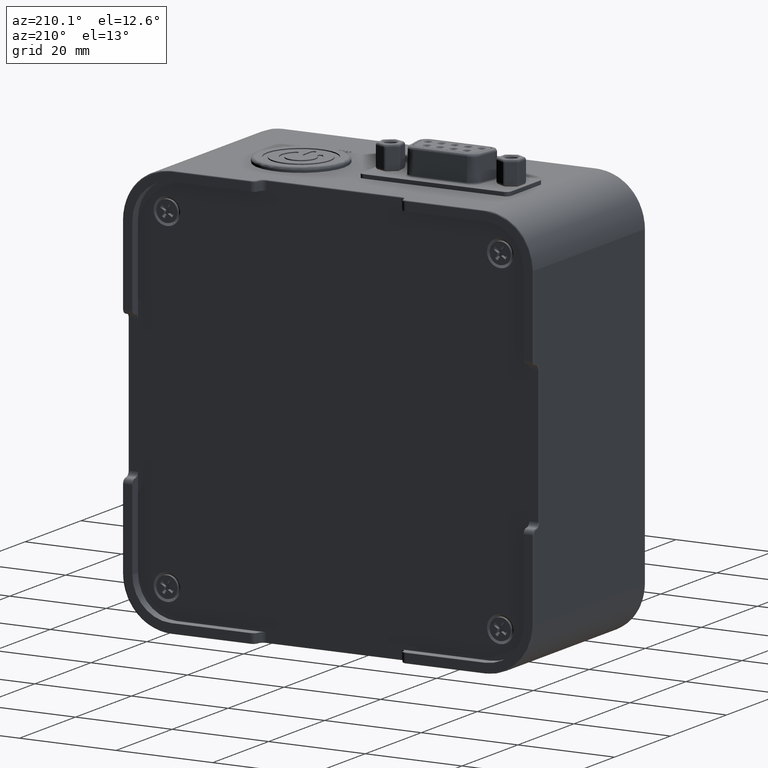
[diagram: clean part render]
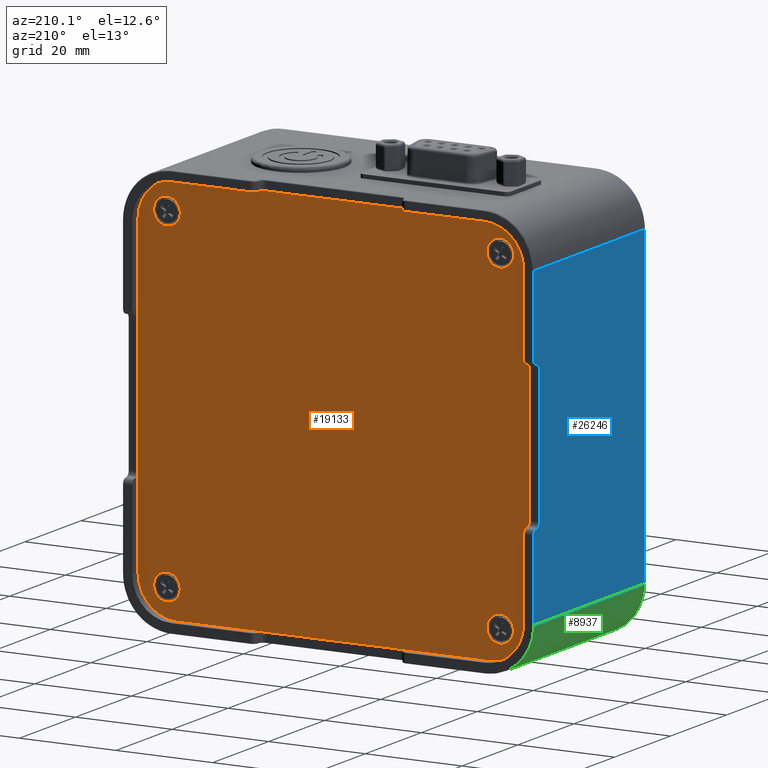
[diagram: same view with three faces highlighted in distinct colors, each labeled with its STEP entity id]
A machine part, auxiliary view with three faces highlighted in distinct colors.
Their STEP definitions:

[orange] entity #19133 — the highlighted planar face has unit normal (-0, 1, 0).
#205 = VECTOR ( 'NONE', #43776, 1000.000000000000000 ) ;
#1231 = EDGE_CURVE ( 'NONE', #12256, #12256, #27278, .T. ) ;
#1594 = EDGE_CURVE ( 'NONE', #36163, #35679, #8375, .T. ) ;
#2066 = AXIS2_PLACEMENT_3D ( 'NONE', #18904, #18453, #19349 ) ;
#2319 = AXIS2_PLACEMENT_3D ( 'NONE', #2552, #44098, #40506 ) ;
#2552 = CARTESIAN_POINT ( 'NONE',  ( 7.999999999999979572, 38.00000000001090683, 76.99999999999995737 ) ) ;
#2867 = VECTOR ( 'NONE', #23157, 1000.000000000000000 ) ;
#3170 = VECTOR ( 'NONE', #43686, 1000.000000000000000 ) ;
#3362 = ORIENTED_EDGE ( 'NONE', *, *, #26351, .F. ) ;
#3841 = VERTEX_POINT ( 'NONE', #17515 ) ;
#4310 = CIRCLE ( 'NONE', #10025, 7.999999999999992895 ) ;
#4497 = DIRECTION ( 'NONE',  ( 1.224646799147353454E-16, -1.000000000000000000, -1.224646799147353207E-16 ) ) ;
#4700 = DIRECTION ( 'NONE',  ( 0.000000000000000000, 0.000000000000000000, 1.000000000000000000 ) ) ;
#4759 = AXIS2_PLACEMENT_3D ( 'NONE', #13433, #34309, #17241 ) ;
#5197 = EDGE_CURVE ( 'NONE', #13369, #13369, #5982, .T. ) ;
#5242 = DIRECTION ( 'NONE',  ( 1.000000000000000000, 0.000000000000000000, 0.000000000000000000 ) ) ;
#5410 = DIRECTION ( 'NONE',  ( -1.224646799147353454E-16, 1.000000000000000000, 1.224646799147353207E-16 ) ) ;
#5940 = CARTESIAN_POINT ( 'NONE',  ( 2.000000000000015543, 38.00000000000001421, 1.999999999999960032 ) ) ;
#5982 = CIRCLE ( 'NONE', #16697, 2.749999999973155695 ) ;
#6351 = CIRCLE ( 'NONE', #2066, 8.000000000000000000 ) ;
#7082 = CARTESIAN_POINT ( 'NONE',  ( 8.000000000000014211, 38.00000000001091394, 10.74999999997312905 ) ) ;
#7897 = CARTESIAN_POINT ( 'NONE',  ( 9.999999999999998224, 37.99999999999999289, 82.99999999999997158 ) ) ;
#7926 = AXIS2_PLACEMENT_3D ( 'NONE', #11629, #18371, #4700 ) ;
#8047 = EDGE_LOOP ( 'NONE', ( #40025 ) ) ;
#8375 = LINE ( 'NONE', #16011, #18067 ) ;
#8588 = ORIENTED_EDGE ( 'NONE', *, *, #9317, .F. ) ;
#8988 = FACE_BOUND ( 'NONE', #8047, .T. ) ;
#9317 = EDGE_CURVE ( 'NONE', #25191, #35679, #24835, .T. ) ;
#9464 = ORIENTED_EDGE ( 'NONE', *, *, #32721, .T. ) ;
#9576 = VERTEX_POINT ( 'NONE', #11838 ) ;
#9966 = EDGE_LOOP ( 'NONE', ( #35720 ) ) ;
#9995 = VERTEX_POINT ( 'NONE', #13801 ) ;
#10025 = AXIS2_PLACEMENT_3D ( 'NONE', #34574, #4497, #31637 ) ;
#10280 = CARTESIAN_POINT ( 'NONE',  ( 83.00000000000001421, 38.00000000000000711, 2.000000000000001776 ) ) ;
#11158 = EDGE_CURVE ( 'NONE', #9995, #9995, #29125, .T. ) ;
#11629 = CARTESIAN_POINT ( 'NONE',  ( 76.99999999999998579, 37.99999999995407052, 77.00000000000001421 ) ) ;
#11838 = CARTESIAN_POINT ( 'NONE',  ( 74.99999999999998579, 38.00000000000000000, 83.00000000000000000 ) ) ;
#11917 = AXIS2_PLACEMENT_3D ( 'NONE', #31888, #28729, #32330 ) ;
#11963 = CARTESIAN_POINT ( 'NONE',  ( 74.99999999999998579, 38.00000000000001421, 9.999999999999980460 ) ) ;
#12181 = DIRECTION ( 'NONE',  ( 1.224646799147353454E-16, -1.000000000000000000, -1.224646799147353207E-16 ) ) ;
#12256 = VERTEX_POINT ( 'NONE', #25950 ) ;
#12415 = DIRECTION ( 'NONE',  ( -2.180132940149908669E-16, -0.000000000000000000, 1.000000000000000000 ) ) ;
#13009 = FACE_OUTER_BOUND ( 'NONE', #26266, .T. ) ;
#13369 = VERTEX_POINT ( 'NONE', #7082 ) ;
#13416 = DIRECTION ( 'NONE',  ( -0.000000000000000000, -1.000000000000000000, -0.000000000000000000 ) ) ;
#13433 = CARTESIAN_POINT ( 'NONE',  ( 10.00000000000000178, 37.99999999999999289, 74.99999999999998579 ) ) ;
#13591 = CARTESIAN_POINT ( 'NONE',  ( 2.000000000000013767, 38.00000000000000711, 9.999999999999971578 ) ) ;
#13801 = CARTESIAN_POINT ( 'NONE',  ( 74.25000000006687628, 37.99999999995406341, 8.000000000000014211 ) ) ;
#13939 = CARTESIAN_POINT ( 'NONE',  ( 1.999999999999980904, 37.99999999999999289, 82.99999999999997158 ) ) ;
#15717 = DIRECTION ( 'NONE',  ( -1.000000000000000000, -1.224646799147353454E-16, 0.000000000000000000 ) ) ;
#16011 = CARTESIAN_POINT ( 'NONE',  ( 2.000000000000015543, 38.00000000000000711, 1.999999999999960032 ) ) ;
#16697 = AXIS2_PLACEMENT_3D ( 'NONE', #22864, #13416, #43998 ) ;
#17241 = DIRECTION ( 'NONE',  ( 1.000000000000000000, 0.000000000000000000, 0.000000000000000000 ) ) ;
#17515 = CARTESIAN_POINT ( 'NONE',  ( 5.250000000026791902, 38.00000000001091394, 76.99999999999995737 ) ) ;
#18067 = VECTOR ( 'NONE', #12415, 1000.000000000000000 ) ;
#18347 = EDGE_LOOP ( 'NONE', ( #21393 ) ) ;
#18371 = DIRECTION ( 'NONE',  ( -0.000000000000000000, -1.000000000000000000, -0.000000000000000000 ) ) ;
#18453 = DIRECTION ( 'NONE',  ( 1.224646799147353454E-16, -1.000000000000000000, -1.224646799147353207E-16 ) ) ;
#18904 = CARTESIAN_POINT ( 'NONE',  ( 9.999999999999994671, 38.00000000000000711, 9.999999999999980460 ) ) ;
#19133 = ADVANCED_FACE ( 'NONE', ( #13009, #39777, #8988, #26699, #40442 ), #23352, .T. ) ;
#19349 = DIRECTION ( 'NONE',  ( 1.000000000000000000, 0.000000000000000000, 0.000000000000000000 ) ) ;
#19727 = CARTESIAN_POINT ( 'NONE',  ( 10.00000000000000533, 38.00000000000000711, 1.999999999999971356 ) ) ;
#20215 = AXIS2_PLACEMENT_3D ( 'NONE', #37058, #5410, #15717 ) ;
#21393 = ORIENTED_EDGE ( 'NONE', *, *, #5197, .T. ) ;
#22328 = EDGE_LOOP ( 'NONE', ( #30093 ) ) ;
#22864 = CARTESIAN_POINT ( 'NONE',  ( 8.000000000000014211, 38.00000000001091394, 7.999999999999972466 ) ) ;
#23002 = CARTESIAN_POINT ( 'NONE',  ( 75.00000000000000000, 38.00000000000001421, 1.999999999999982681 ) ) ;
#23157 = DIRECTION ( 'NONE',  ( 1.000000000000000000, -0.000000000000000000, 3.036786508533516477E-16 ) ) ;
#23352 = PLANE ( 'NONE',  #20215 ) ;
#24835 = CIRCLE ( 'NONE', #4759, 8.000000000000000000 ) ;
#25075 = VERTEX_POINT ( 'NONE', #23002 ) ;
#25191 = VERTEX_POINT ( 'NONE', #7897 ) ;
#25873 = VERTEX_POINT ( 'NONE', #38127 ) ;
#25950 = CARTESIAN_POINT ( 'NONE',  ( 76.99999999999998579, 37.99999999995407052, 79.74999999993318056 ) ) ;
#26229 = ORIENTED_EDGE ( 'NONE', *, *, #38362, .T. ) ;
#26266 = EDGE_LOOP ( 'NONE', ( #43390, #8588, #26229, #35540, #31223, #42792, #9464, #3362 ) ) ;
#26351 = EDGE_CURVE ( 'NONE', #36163, #39163, #6351, .T. ) ;
#26699 = FACE_BOUND ( 'NONE', #18347, .T. ) ;
#27278 = CIRCLE ( 'NONE', #7926, 2.749999999933167238 ) ;
#27832 = EDGE_CURVE ( 'NONE', #25075, #25873, #42168, .T. ) ;
#28729 = DIRECTION ( 'NONE',  ( 1.261617073520504696E-15, -1.000000000000000000, -0.000000000000000000 ) ) ;
#29125 = CIRCLE ( 'NONE', #11917, 2.749999999933139261 ) ;
#30093 = ORIENTED_EDGE ( 'NONE', *, *, #41662, .T. ) ;
#31223 = ORIENTED_EDGE ( 'NONE', *, *, #31287, .T. ) ;
#31287 = EDGE_CURVE ( 'NONE', #38857, #25873, #41059, .T. ) ;
#31637 = DIRECTION ( 'NONE',  ( 1.000000000000000000, 0.000000000000000000, 0.000000000000000000 ) ) ;
#31888 = CARTESIAN_POINT ( 'NONE',  ( 77.00000000000001421, 37.99999999995407052, 8.000000000000014211 ) ) ;
#32330 = DIRECTION ( 'NONE',  ( -1.000000000000000000, -2.523234146936703048E-15, 0.000000000000000000 ) ) ;
#32721 = EDGE_CURVE ( 'NONE', #25075, #39163, #37148, .T. ) ;
#34253 = AXIS2_PLACEMENT_3D ( 'NONE', #11963, #12181, #5242 ) ;
#34309 = DIRECTION ( 'NONE',  ( 1.224646799147353454E-16, -1.000000000000000000, -1.224646799147353207E-16 ) ) ;
#34574 = CARTESIAN_POINT ( 'NONE',  ( 75.00000000000000000, 38.00000000000000711, 75.00000000000001421 ) ) ;
#34577 = CIRCLE ( 'NONE', #2319, 2.749999999973187226 ) ;
#35540 = ORIENTED_EDGE ( 'NONE', *, *, #38519, .F. ) ;
#35679 = VERTEX_POINT ( 'NONE', #43227 ) ;
#35720 = ORIENTED_EDGE ( 'NONE', *, *, #11158, .T. ) ;
#36163 = VERTEX_POINT ( 'NONE', #13591 ) ;
#37058 = CARTESIAN_POINT ( 'NONE',  ( 42.50000000000000711, 38.00000000000000711, 42.49999999999998579 ) ) ;
#37148 = LINE ( 'NONE', #5940, #3170 ) ;
#38127 = CARTESIAN_POINT ( 'NONE',  ( 83.00000000000000000, 38.00000000000001421, 9.999999999999980460 ) ) ;
#38362 = EDGE_CURVE ( 'NONE', #25191, #9576, #44285, .T. ) ;
#38519 = EDGE_CURVE ( 'NONE', #38857, #9576, #4310, .T. ) ;
#38857 = VERTEX_POINT ( 'NONE', #41069 ) ;
#39163 = VERTEX_POINT ( 'NONE', #19727 ) ;
#39777 = FACE_BOUND ( 'NONE', #22328, .T. ) ;
#40025 = ORIENTED_EDGE ( 'NONE', *, *, #1231, .T. ) ;
#40442 = FACE_BOUND ( 'NONE', #9966, .T. ) ;
#40506 = DIRECTION ( 'NONE',  ( -1.000000000000000000, 2.523234146899957513E-15, 0.000000000000000000 ) ) ;
#41059 = LINE ( 'NONE', #10280, #205 ) ;
#41069 = CARTESIAN_POINT ( 'NONE',  ( 82.99999999999998579, 38.00000000000000711, 75.00000000000001421 ) ) ;
#41662 = EDGE_CURVE ( 'NONE', #3841, #3841, #34577, .T. ) ;
#42168 = CIRCLE ( 'NONE', #34253, 8.000000000000007105 ) ;
#42792 = ORIENTED_EDGE ( 'NONE', *, *, #27832, .F. ) ;
#43227 = CARTESIAN_POINT ( 'NONE',  ( 2.000000000000000000, 38.00000000000000000, 74.99999999999998579 ) ) ;
#43390 = ORIENTED_EDGE ( 'NONE', *, *, #1594, .T. ) ;
#43686 = DIRECTION ( 'NONE',  ( -1.000000000000000000, -0.000000000000000000, -3.036786508533516477E-16 ) ) ;
#43776 = DIRECTION ( 'NONE',  ( 3.036786508533516477E-16, -0.000000000000000000, -1.000000000000000000 ) ) ;
#43998 = DIRECTION ( 'NONE',  ( 0.000000000000000000, 0.000000000000000000, 1.000000000000000000 ) ) ;
#44098 = DIRECTION ( 'NONE',  ( -1.261617073502126604E-15, -1.000000000000000000, -0.000000000000000000 ) ) ;
#44285 = LINE ( 'NONE', #13939, #2867 ) ;

[blue] entity #26246 — the highlighted planar face has unit normal (1, 0, 0).
#6 = CARTESIAN_POINT ( 'NONE',  ( -2.054725941590926970E-14, 37.79999999999998295, 85.00000000000001421 ) ) ;
#593 = CARTESIAN_POINT ( 'NONE',  ( -1.469412826709765601E-14, 39.99999999999997158, 9.999999999999980460 ) ) ;
#826 = DIRECTION ( 'NONE',  ( -8.163404592832032733E-17, -9.997287304756580616E-33, 1.000000000000000000 ) ) ;
#1194 = EDGE_CURVE ( 'NONE', #9641, #39329, #36663, .T. ) ;
#1312 = AXIS2_PLACEMENT_3D ( 'NONE', #20928, #24527, #34629 ) ;
#1399 = LINE ( 'NONE', #18000, #9594 ) ;
#1468 = ORIENTED_EDGE ( 'NONE', *, *, #44205, .F. ) ;
#1772 = CARTESIAN_POINT ( 'NONE',  ( -2.006078649557966423E-14, 37.79999999999998295, 56.50000000000000000 ) ) ;
#1990 = CARTESIAN_POINT ( 'NONE',  ( -2.195826802455129326E-14, 37.79999999999998295, 57.20294372515228076 ) ) ;
#3441 = VECTOR ( 'NONE', #16853, 1000.000000000000000 ) ;
#4035 = VERTEX_POINT ( 'NONE', #29822 ) ;
#4180 = CARTESIAN_POINT ( 'NONE',  ( -7.860872421934709605E-15, 0.1999999999999762801, 75.00000000000001421 ) ) ;
#4190 = DIRECTION ( 'NONE',  ( -1.224646799147356905E-16, 1.000000000000000000, 0.000000000000000000 ) ) ;
#4229 = VERTEX_POINT ( 'NONE', #40844 ) ;
#4297 = EDGE_CURVE ( 'NONE', #36576, #4035, #35164, .T. ) ;
#4563 = CARTESIAN_POINT ( 'NONE',  ( -2.037485746559092109E-14, 39.79999999999998295, 58.50000000000000000 ) ) ;
#5206 = ORIENTED_EDGE ( 'NONE', *, *, #13689, .F. ) ;
#6498 = CARTESIAN_POINT ( 'NONE',  ( -1.707908469077082812E-14, 39.79999999999999005, 9.999999999999989342 ) ) ;
#7121 = CARTESIAN_POINT ( 'NONE',  ( -2.059855298993727497E-14, 38.99999999999997868, 57.69999999999999574 ) ) ;
#7646 = ORIENTED_EDGE ( 'NONE', *, *, #33884, .F. ) ;
#7995 = CARTESIAN_POINT ( 'NONE',  ( -2.079218877573874000E-14, 39.79999999999998295, 85.00000000000001421 ) ) ;
#8671 = LINE ( 'NONE', #11592, #35308 ) ;
#9087 = ORIENTED_EDGE ( 'NONE', *, *, #1194, .F. ) ;
#9312 =( BOUNDED_CURVE ( )  B_SPLINE_CURVE ( 3, ( #31491, #21382, #21167, #38036 ),
 .UNSPECIFIED., .F., .T. ) 
 B_SPLINE_CURVE_WITH_KNOTS ( ( 4, 4 ),
 ( 0.000000000000000000, 1.000000000000000000 ),
 .UNSPECIFIED. ) 
 CURVE ( )  GEOMETRIC_REPRESENTATION_ITEM ( )  RATIONAL_B_SPLINE_CURVE ( ( 1.000000000000000000, 0.8047378541243690453, 0.8047378541243690453, 1.000000000000000000 ) ) 
 REPRESENTATION_ITEM ( '' )  );
#9436 = VERTEX_POINT ( 'NONE', #31374 ) ;
#9594 = VECTOR ( 'NONE', #28336, 1000.000000000000000 ) ;
#9641 = VERTEX_POINT ( 'NONE', #16526 ) ;
#11250 = VERTEX_POINT ( 'NONE', #6498 ) ;
#11592 = CARTESIAN_POINT ( 'NONE',  ( 0.000000000000000000, 39.99999999999997868, 75.00000000000001421 ) ) ;
#13689 = EDGE_CURVE ( 'NONE', #9436, #9641, #23800, .T. ) ;
#13809 = CARTESIAN_POINT ( 'NONE',  ( -2.210657327945369332E-14, 39.79999999999999005, 58.03137084989847949 ) ) ;
#14036 = CARTESIAN_POINT ( 'NONE',  ( -2.059855298993727497E-14, 38.99999999999997868, 57.69999999999999574 ) ) ;
#14412 = PLANE ( 'NONE',  #1312 ) ;
#15158 = LINE ( 'NONE', #593, #37472 ) ;
#16526 = CARTESIAN_POINT ( 'NONE',  ( -2.006078649557966423E-14, 37.79999999999998295, 56.50000000000000000 ) ) ;
#16853 = DIRECTION ( 'NONE',  ( -8.163404592832032733E-17, -9.997287304756580616E-33, 1.000000000000000000 ) ) ;
#17193 = ORIENTED_EDGE ( 'NONE', *, *, #42213, .F. ) ;
#17663 = ORIENTED_EDGE ( 'NONE', *, *, #35545, .F. ) ;
#18000 = CARTESIAN_POINT ( 'NONE',  ( -2.079218877573874000E-14, 39.79999999999999005, 85.00000000000001421 ) ) ;
#19611 = EDGE_CURVE ( 'NONE', #4229, #11250, #15158, .T. ) ;
#20726 = CARTESIAN_POINT ( 'NONE',  ( -1.906871273073779723E-14, 39.79999999999999005, 26.50000000000000711 ) ) ;
#20812 = LINE ( 'NONE', #34505, #21786 ) ;
#20928 = CARTESIAN_POINT ( 'NONE',  ( -2.081668171172168513E-14, 39.99999999999997158, 85.00000000000001421 ) ) ;
#21167 = CARTESIAN_POINT ( 'NONE',  ( -2.184349974386308587E-14, 37.79999999999999716, 27.79705627484774055 ) ) ;
#21382 = CARTESIAN_POINT ( 'NONE',  ( -2.185905943461793963E-14, 38.29705627484771213, 27.30000000000003268 ) ) ;
#21613 =( BOUNDED_CURVE ( )  B_SPLINE_CURVE ( 3, ( #14036, #37645, #13809, #27726 ),
 .UNSPECIFIED., .F., .F. ) 
 B_SPLINE_CURVE_WITH_KNOTS ( ( 4, 4 ),
 ( 0.000000000000000000, 1.000000000000000000 ),
 .UNSPECIFIED. ) 
 CURVE ( )  GEOMETRIC_REPRESENTATION_ITEM ( )  RATIONAL_B_SPLINE_CURVE ( ( 1.000000000000000000, 0.8047378541243609407, 0.8047378541243609407, 1.000000000000000000 ) ) 
 REPRESENTATION_ITEM ( '' )  );
#21734 = CARTESIAN_POINT ( 'NONE',  ( -2.205498114484590695E-14, 38.29705627484769792, 57.69999999999998863 ) ) ;
#21786 = VECTOR ( 'NONE', #24404, 1000.000000000000000 ) ;
#22058 = EDGE_CURVE ( 'NONE', #32777, #37982, #25953, .T. ) ;
#23685 = CARTESIAN_POINT ( 'NONE',  ( -2.218308546657916281E-14, 39.79999999999999005, 26.96862915010152761 ) ) ;
#23800 = LINE ( 'NONE', #6, #3441 ) ;
#24404 = DIRECTION ( 'NONE',  ( 8.163404592832031500E-17, 1.224646799147353207E-16, -1.000000000000000000 ) ) ;
#24527 = DIRECTION ( 'NONE',  ( 1.000000000000000000, 1.224646799147356905E-16, 8.163404592832032733E-17 ) ) ;
#24547 = VECTOR ( 'NONE', #826, 1000.000000000000000 ) ;
#25022 = ORIENTED_EDGE ( 'NONE', *, *, #43032, .F. ) ;
#25391 = ORIENTED_EDGE ( 'NONE', *, *, #19611, .F. ) ;
#25953 =( BOUNDED_CURVE ( )  B_SPLINE_CURVE ( 3, ( #36735, #23685, #43724, #34023 ),
 .UNSPECIFIED., .F., .F. ) 
 B_SPLINE_CURVE_WITH_KNOTS ( ( 4, 4 ),
 ( 0.000000000000000000, 1.000000000000000000 ),
 .UNSPECIFIED. ) 
 CURVE ( )  GEOMETRIC_REPRESENTATION_ITEM ( )  RATIONAL_B_SPLINE_CURVE ( ( 1.000000000000000000, 0.8047378541243640493, 0.8047378541243640493, 1.000000000000000000 ) ) 
 REPRESENTATION_ITEM ( '' )  );
#26246 = ADVANCED_FACE ( 'NONE', ( #34409 ), #14412, .F. ) ;
#27346 = ORIENTED_EDGE ( 'NONE', *, *, #4297, .F. ) ;
#27726 = CARTESIAN_POINT ( 'NONE',  ( -2.037485746559092109E-14, 39.79999999999998295, 58.50000000000000000 ) ) ;
#28336 = DIRECTION ( 'NONE',  ( -8.163404592832032733E-17, -9.997287304756580616E-33, 1.000000000000000000 ) ) ;
#29822 = CARTESIAN_POINT ( 'NONE',  ( -1.049694113406011673E-14, 39.79999999999999005, 75.00000000000001421 ) ) ;
#31374 = CARTESIAN_POINT ( 'NONE',  ( -1.836225623918435667E-14, 37.79999999999998295, 28.50000000000001776 ) ) ;
#31491 = CARTESIAN_POINT ( 'NONE',  ( -1.958740053323794372E-14, 38.99999999999997868, 27.30000000000001137 ) ) ;
#32612 = EDGE_LOOP ( 'NONE', ( #27346, #17663, #9087, #5206, #7646, #37225, #25022, #25391, #1468, #17193 ) ) ;
#32777 = VERTEX_POINT ( 'NONE', #20726 ) ;
#33884 = EDGE_CURVE ( 'NONE', #37982, #9436, #9312, .T. ) ;
#34023 = CARTESIAN_POINT ( 'NONE',  ( -1.958740053323794372E-14, 38.99999999999997868, 27.30000000000001137 ) ) ;
#34409 = FACE_OUTER_BOUND ( 'NONE', #32612, .T. ) ;
#34505 = CARTESIAN_POINT ( 'NONE',  ( -2.203640915576787762E-14, 0.1999999999999745592, 85.00000000000001421 ) ) ;
#34629 = DIRECTION ( 'NONE',  ( -1.224646799147356905E-16, 1.000000000000000000, 0.000000000000000000 ) ) ;
#35164 = LINE ( 'NONE', #7995, #24547 ) ;
#35308 = VECTOR ( 'NONE', #35843, 1000.000000000000000 ) ;
#35545 = EDGE_CURVE ( 'NONE', #39329, #36576, #21613, .T. ) ;
#35843 = DIRECTION ( 'NONE',  ( 1.224646799147356905E-16, -1.000000000000000000, -1.224646799147353207E-16 ) ) ;
#36111 = CARTESIAN_POINT ( 'NONE',  ( -2.059855298993727497E-14, 38.99999999999997868, 57.69999999999999574 ) ) ;
#36576 = VERTEX_POINT ( 'NONE', #4563 ) ;
#36663 =( BOUNDED_CURVE ( )  B_SPLINE_CURVE ( 3, ( #1772, #1990, #21734, #36111 ),
 .UNSPECIFIED., .F., .T. ) 
 B_SPLINE_CURVE_WITH_KNOTS ( ( 4, 4 ),
 ( 0.000000000000000000, 1.000000000000000000 ),
 .UNSPECIFIED. ) 
 CURVE ( )  GEOMETRIC_REPRESENTATION_ITEM ( )  RATIONAL_B_SPLINE_CURVE ( ( 1.000000000000000000, 0.8047378541243649375, 0.8047378541243649375, 1.000000000000000000 ) ) 
 REPRESENTATION_ITEM ( '' )  );
#36735 = CARTESIAN_POINT ( 'NONE',  ( -1.906871273073779723E-14, 39.79999999999999005, 26.50000000000000711 ) ) ;
#37001 = VERTEX_POINT ( 'NONE', #4180 ) ;
#37225 = ORIENTED_EDGE ( 'NONE', *, *, #22058, .F. ) ;
#37472 = VECTOR ( 'NONE', #4190, 1000.000000000000000 ) ;
#37645 = CARTESIAN_POINT ( 'NONE',  ( -2.203461301185398678E-14, 39.46862915010150630, 57.70000000000000284 ) ) ;
#37982 = VERTEX_POINT ( 'NONE', #42636 ) ;
#38036 = CARTESIAN_POINT ( 'NONE',  ( -1.836225623918435667E-14, 37.79999999999998295, 28.50000000000001776 ) ) ;
#39329 = VERTEX_POINT ( 'NONE', #7121 ) ;
#40844 = CARTESIAN_POINT ( 'NONE',  ( -1.344690523267436379E-14, 0.1999999999999840239, 9.999999999999985789 ) ) ;
#42213 = EDGE_CURVE ( 'NONE', #4035, #37001, #8671, .T. ) ;
#42636 = CARTESIAN_POINT ( 'NONE',  ( -1.958740053323794372E-14, 38.99999999999997868, 27.30000000000001137 ) ) ;
#43032 = EDGE_CURVE ( 'NONE', #11250, #32777, #1399, .T. ) ;
#43724 = CARTESIAN_POINT ( 'NONE',  ( -2.216522748533929412E-14, 39.46862915010152051, 27.30000000000000426 ) ) ;
#44205 = EDGE_CURVE ( 'NONE', #37001, #4229, #20812, .T. ) ;

[green] entity #8937 — the highlighted cylindrical surface (partial cylindrical patch) has radius 10 mm, axis along (0, -1, -0).
#593 = CARTESIAN_POINT ( 'NONE',  ( -1.469412826709765601E-14, 39.99999999999997158, 9.999999999999980460 ) ) ;
#595 = CARTESIAN_POINT ( 'NONE',  ( 9.999999999999980460, 39.79999999999999005, 10.00000000000000888 ) ) ;
#751 = AXIS2_PLACEMENT_3D ( 'NONE', #595, #35373, #17205 ) ;
#1261 = LINE ( 'NONE', #14502, #13506 ) ;
#2708 = AXIS2_PLACEMENT_3D ( 'NONE', #19534, #12580, #30295 ) ;
#4190 = DIRECTION ( 'NONE',  ( -1.224646799147356905E-16, 1.000000000000000000, 0.000000000000000000 ) ) ;
#4229 = VERTEX_POINT ( 'NONE', #40844 ) ;
#4416 = DIRECTION ( 'NONE',  ( 1.224646799147356905E-16, -1.000000000000000000, -1.224646799147353207E-16 ) ) ;
#4853 = CIRCLE ( 'NONE', #2708, 10.00000000000000000 ) ;
#6498 = CARTESIAN_POINT ( 'NONE',  ( -1.707908469077082812E-14, 39.79999999999999005, 9.999999999999989342 ) ) ;
#7260 = FACE_OUTER_BOUND ( 'NONE', #31775, .T. ) ;
#7488 = CYLINDRICAL_SURFACE ( 'NONE', #23379, 10.00000000000000178 ) ;
#8937 = ADVANCED_FACE ( 'NONE', ( #7260 ), #7488, .T. ) ;
#10637 = DIRECTION ( 'NONE',  ( 1.000000000000000000, 0.000000000000000000, 0.000000000000000000 ) ) ;
#11235 = EDGE_CURVE ( 'NONE', #4229, #23118, #4853, .T. ) ;
#11250 = VERTEX_POINT ( 'NONE', #6498 ) ;
#11563 = ORIENTED_EDGE ( 'NONE', *, *, #11235, .F. ) ;
#12580 = DIRECTION ( 'NONE',  ( 1.224646799147356905E-16, -1.000000000000000000, -1.224646799147353207E-16 ) ) ;
#13506 = VECTOR ( 'NONE', #4416, 1000.000000000000000 ) ;
#14375 = CIRCLE ( 'NONE', #751, 10.00000000000000178 ) ;
#14502 = CARTESIAN_POINT ( 'NONE',  ( 9.999999999999978684, 39.99999999999998579, 6.938893903907228378E-15 ) ) ;
#15158 = LINE ( 'NONE', #593, #37472 ) ;
#15884 = EDGE_CURVE ( 'NONE', #11250, #38587, #14375, .T. ) ;
#17205 = DIRECTION ( 'NONE',  ( 1.000000000000000000, 0.000000000000000000, 0.000000000000000000 ) ) ;
#19534 = CARTESIAN_POINT ( 'NONE',  ( 9.999999999999987566, 0.1999999999999849121, 10.00000000000000178 ) ) ;
#19611 = EDGE_CURVE ( 'NONE', #4229, #11250, #15158, .T. ) ;
#20880 = CARTESIAN_POINT ( 'NONE',  ( 9.999999999999980460, 39.79999999999999005, 6.891460058860987559E-15 ) ) ;
#21178 = DIRECTION ( 'NONE',  ( 1.224646799147356905E-16, -1.000000000000000000, -1.224646799147353207E-16 ) ) ;
#21488 = ORIENTED_EDGE ( 'NONE', *, *, #15884, .T. ) ;
#23118 = VERTEX_POINT ( 'NONE', #28854 ) ;
#23379 = AXIS2_PLACEMENT_3D ( 'NONE', #41430, #21178, #10637 ) ;
#27407 = ORIENTED_EDGE ( 'NONE', *, *, #19611, .T. ) ;
#28299 = EDGE_CURVE ( 'NONE', #38587, #23118, #1261, .T. ) ;
#28854 = CARTESIAN_POINT ( 'NONE',  ( 9.999999999999985789, 0.1999999999999854949, -6.938893903907228378E-15 ) ) ;
#30295 = DIRECTION ( 'NONE',  ( 8.673617379884035472E-16, 1.219727444046192488E-16, -1.000000000000000000 ) ) ;
#31157 = ORIENTED_EDGE ( 'NONE', *, *, #28299, .T. ) ;
#31775 = EDGE_LOOP ( 'NONE', ( #31157, #11563, #27407, #21488 ) ) ;
#35373 = DIRECTION ( 'NONE',  ( 1.224646799147356905E-16, -1.000000000000000000, -1.224646799147353207E-16 ) ) ;
#37472 = VECTOR ( 'NONE', #4190, 1000.000000000000000 ) ;
#38587 = VERTEX_POINT ( 'NONE', #20880 ) ;
#40844 = CARTESIAN_POINT ( 'NONE',  ( -1.344690523267436379E-14, 0.1999999999999840239, 9.999999999999985789 ) ) ;
#41430 = CARTESIAN_POINT ( 'NONE',  ( 9.999999999999980460, 39.99999999999998579, 10.00000000000000888 ) ) ;